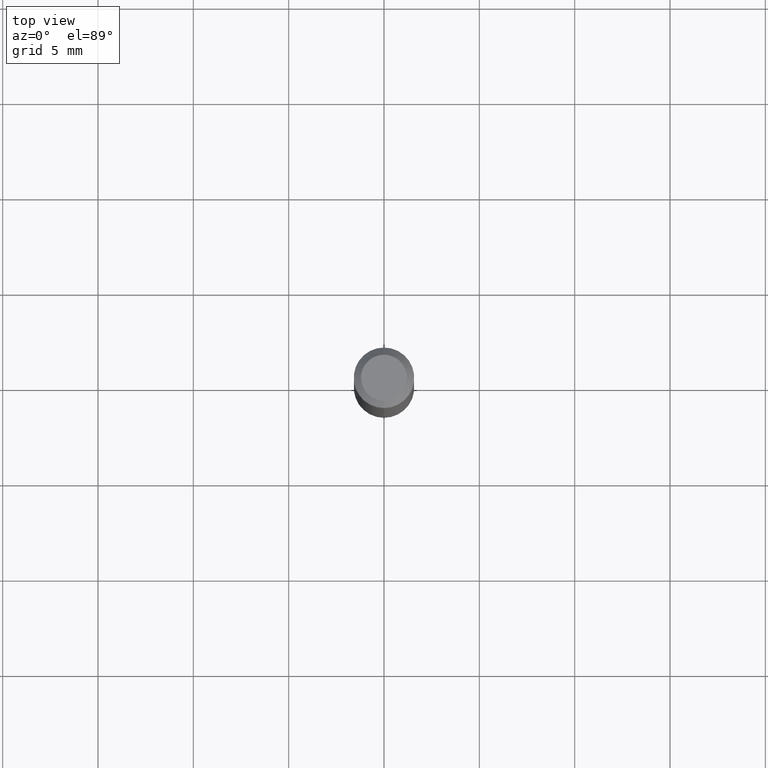
[diagram: clean part render]
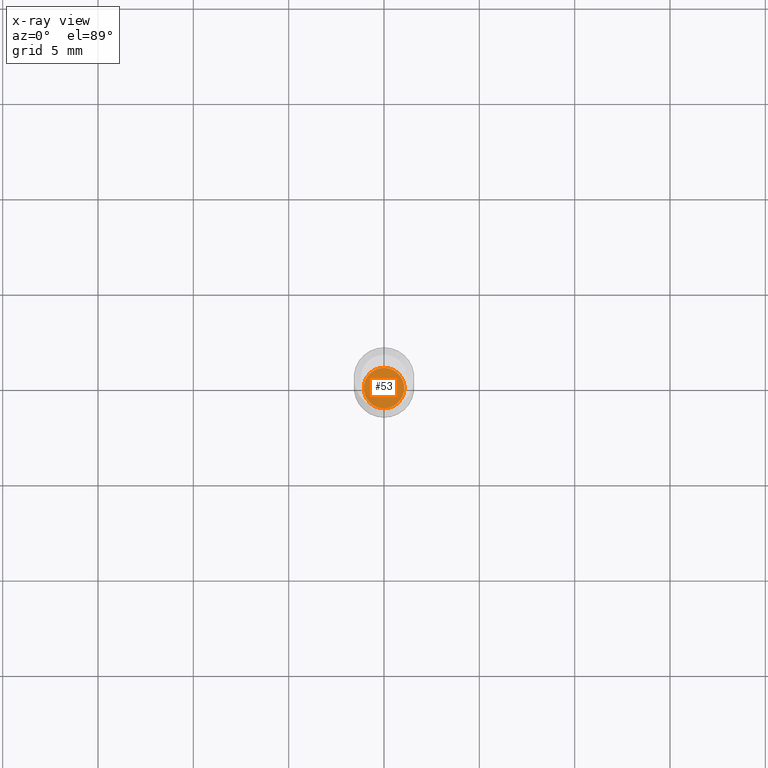
[diagram: x-ray — body ghosted, one internal face saturated and labeled with its STEP entity id]
A machine part, top view, then the same camera in x-ray: the body is ghosted and one INTERNAL B-rep face — a face not visible from any outside direction — is saturated and labeled: STEP entity #53.
In plain terms, the highlighted planar face has unit normal (-0, 0, 1).
Its self-contained STEP definition (entity closure, byte-faithful):
#6 = AXIS2_PLACEMENT_3D ( 'NONE', #481, #129, #242 ) ;
#23 = EDGE_LOOP ( 'NONE', ( #251, #350 ) ) ;
#53 = ADVANCED_FACE ( 'NONE', ( #311 ), #269, .F. ) ;
#62 = CIRCLE ( 'NONE', #328, 0.04199999999999999567 ) ;
#64 = DIRECTION ( 'NONE',  ( -2.445500284585847563E-29, 3.491436259981687850E-15, 1.000000000000000000 ) ) ;
#68 = DIRECTION ( 'NONE',  ( -6.982962677686265922E-15, -1.000000000000000000, 3.491436259981687850E-15 ) ) ;
#74 = CARTESIAN_POINT ( 'NONE',  ( -2.932844324627926808E-16, -0.04200000000000434636, -1.245000000000000329 ) ) ;
#104 = DIRECTION ( 'NONE',  ( -2.445500284585847843E-29, 3.491436259981687850E-15, 1.000000000000000000 ) ) ;
#129 = DIRECTION ( 'NONE',  ( -2.445500284585847843E-29, 3.491436259981687850E-15, 1.000000000000000000 ) ) ;
#182 = VERTEX_POINT ( 'NONE', #74 ) ;
#188 = CIRCLE ( 'NONE', #6, 0.04199999999999999567 ) ;
#225 = VERTEX_POINT ( 'NONE', #319 ) ;
#242 = DIRECTION ( 'NONE',  ( -6.982962677686265922E-15, -1.000000000000000000, 6.504399984914913214E-15 ) ) ;
#251 = ORIENTED_EDGE ( 'NONE', *, *, #404, .F. ) ;
#269 = PLANE ( 'NONE',  #334 ) ;
#291 = EDGE_CURVE ( 'NONE', #225, #182, #188, .T. ) ;
#292 = CARTESIAN_POINT ( 'NONE',  ( 3.044647854309381895E-29, -4.346838143677203113E-15, -1.245000000000000551 ) ) ;
#308 = DIRECTION ( 'NONE',  ( -6.982962677686265922E-15, -1.000000000000000000, 6.504399984914913214E-15 ) ) ;
#311 = FACE_OUTER_BOUND ( 'NONE', #23, .T. ) ;
#319 = CARTESIAN_POINT ( 'NONE',  ( 3.002043058586734593E-16, 0.04199999999999565192, -1.245000000000000773 ) ) ;
#328 = AXIS2_PLACEMENT_3D ( 'NONE', #292, #104, #308 ) ;
#334 = AXIS2_PLACEMENT_3D ( 'NONE', #425, #64, #68 ) ;
#350 = ORIENTED_EDGE ( 'NONE', *, *, #291, .F. ) ;
#404 = EDGE_CURVE ( 'NONE', #182, #225, #62, .T. ) ;
#425 = CARTESIAN_POINT ( 'NONE',  ( 3.044647854309381895E-29, -4.346838143677203113E-15, -1.245000000000000551 ) ) ;
#481 = CARTESIAN_POINT ( 'NONE',  ( 3.044647854309381895E-29, -4.346838143677203113E-15, -1.245000000000000551 ) ) ;